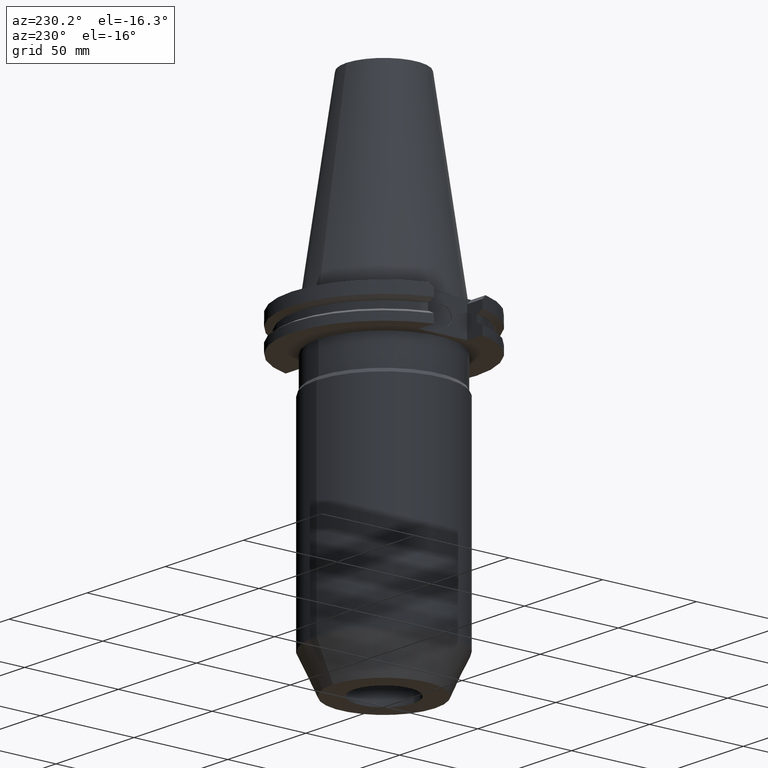
[diagram: clean part render]
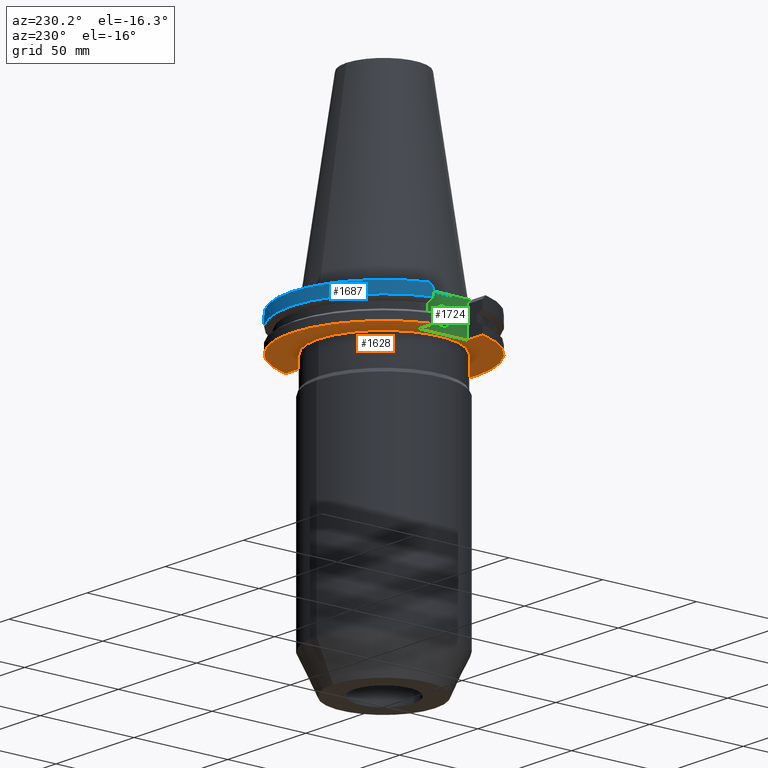
[diagram: same view with three faces highlighted in distinct colors, each labeled with its STEP entity id]
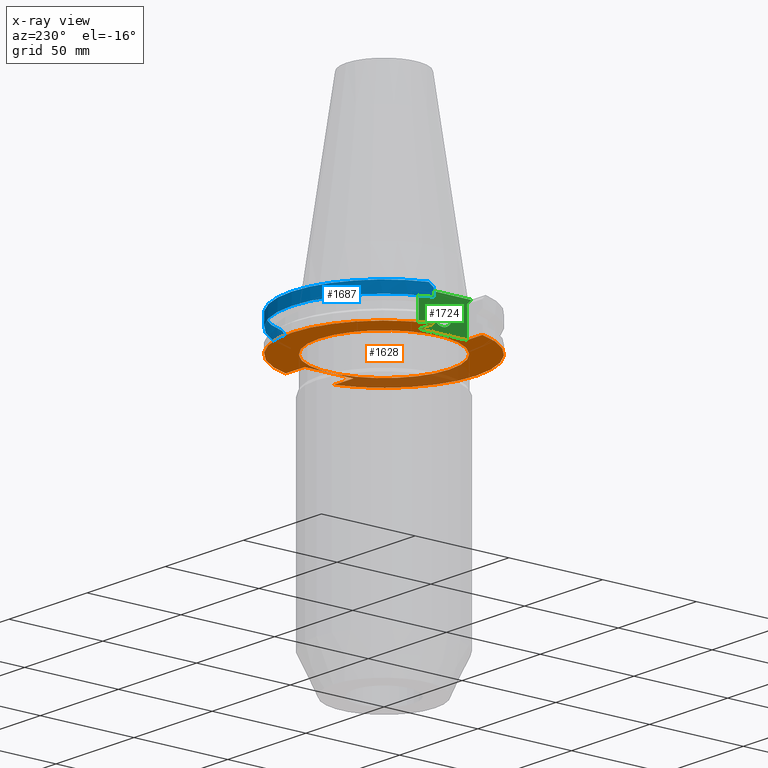
[diagram: x-ray of the same camera — body ghosted, the three highlighted faces saturated]
A machine part, auxiliary view with three faces highlighted in distinct colors.
The next image is the same camera in x-ray (body ghosted, the three faces saturated) — at least one of them is partly hidden behind the body in this view.
Their STEP definitions:

[orange] entity #1628 — the highlighted planar face has unit normal (0, 0, 1).
#170=DIRECTION('',(0.E0,-1.E0,0.E0));
#171=VECTOR('',#170,2.591E1);
#172=CARTESIAN_POINT('',(3.527E1,1.2955E1,-1.905E1));
#173=LINE('',#172,#171);
#205=DIRECTION('',(1.E0,1.469781941986E-14,0.E0));
#206=VECTOR('',#205,1.220671146204E1);
#207=CARTESIAN_POINT('',(3.527E1,1.2955E1,-1.905E1));
#208=LINE('',#207,#206);
#212=CARTESIAN_POINT('',(0.E0,0.E0,-1.905E1));
#213=DIRECTION('',(0.E0,0.E0,1.E0));
#214=DIRECTION('',(9.647287063661E-1,2.632461264923E-1,0.E0));
#215=AXIS2_PLACEMENT_3D('',#212,#213,#214);
#220=CARTESIAN_POINT('',(0.E0,0.E0,-1.905E1));
#221=DIRECTION('',(0.E0,0.E0,1.E0));
#222=DIRECTION('',(0.E0,1.E0,0.E0));
#223=AXIS2_PLACEMENT_3D('',#220,#221,#222);
#228=DIRECTION('',(-1.E0,-1.831349647018E-14,0.E0));
#229=VECTOR('',#228,9.796711462041E0);
#230=CARTESIAN_POINT('',(-3.768E1,-1.2955E1,-1.905E1));
#231=LINE('',#230,#229);
#235=CARTESIAN_POINT('',(0.E0,0.E0,-1.905E1));
#236=DIRECTION('',(0.E0,0.E0,1.E0));
#237=DIRECTION('',(-9.647287063661E-1,-2.632461264923E-1,0.E0));
#238=AXIS2_PLACEMENT_3D('',#235,#236,#237);
#243=CARTESIAN_POINT('',(0.E0,0.E0,-1.905E1));
#244=DIRECTION('',(0.E0,0.E0,1.E0));
#245=DIRECTION('',(0.E0,-1.E0,0.E0));
#246=AXIS2_PLACEMENT_3D('',#243,#244,#245);
#251=CARTESIAN_POINT('',(0.E0,0.E0,-1.905E1));
#252=DIRECTION('',(0.E0,0.E0,-1.E0));
#253=DIRECTION('',(0.E0,-1.E0,0.E0));
#254=AXIS2_PLACEMENT_3D('',#251,#252,#253);
#259=CARTESIAN_POINT('',(0.E0,0.E0,-1.905E1));
#260=DIRECTION('',(0.E0,0.E0,-1.E0));
#261=DIRECTION('',(0.E0,1.E0,0.E0));
#262=AXIS2_PLACEMENT_3D('',#259,#260,#261);
#318=DIRECTION('',(0.E0,1.E0,0.E0));
#319=VECTOR('',#318,2.591E1);
#320=CARTESIAN_POINT('',(-3.768E1,-1.2955E1,-1.905E1));
#321=LINE('',#320,#319);
#355=DIRECTION('',(-1.E0,1.813217472295E-14,0.E0));
#356=VECTOR('',#355,9.796711462041E0);
#357=CARTESIAN_POINT('',(-3.768E1,1.2955E1,-1.905E1));
#358=LINE('',#357,#356);
#605=DIRECTION('',(1.E0,-1.498886534897E-14,0.E0));
#606=VECTOR('',#605,1.220671146204E1);
#607=CARTESIAN_POINT('',(3.527E1,-1.2955E1,-1.905E1));
#608=LINE('',#607,#606);
#1294=CARTESIAN_POINT('',(3.527E1,1.2955E1,-1.905E1));
#1295=CARTESIAN_POINT('',(3.527E1,-1.2955E1,-1.905E1));
#1296=VERTEX_POINT('',#1294);
#1297=VERTEX_POINT('',#1295);
#1302=CARTESIAN_POINT('',(4.747671146204E1,1.2955E1,-1.905E1));
#1303=VERTEX_POINT('',#1302);
#1304=CARTESIAN_POINT('',(0.E0,4.92125E1,-1.905E1));
#1305=CARTESIAN_POINT('',(-4.747671146204E1,1.2955E1,-1.905E1));
#1306=VERTEX_POINT('',#1304);
#1307=VERTEX_POINT('',#1305);
#1308=CARTESIAN_POINT('',(-3.768E1,1.2955E1,-1.905E1));
#1309=VERTEX_POINT('',#1308);
#1310=CARTESIAN_POINT('',(-3.768E1,-1.2955E1,-1.905E1));
#1311=VERTEX_POINT('',#1310);
#1312=CARTESIAN_POINT('',(-4.747671146204E1,-1.2955E1,-1.905E1));
#1313=VERTEX_POINT('',#1312);
#1314=CARTESIAN_POINT('',(0.E0,-4.92125E1,-1.905E1));
#1315=CARTESIAN_POINT('',(4.747671146204E1,-1.2955E1,-1.905E1));
#1316=VERTEX_POINT('',#1314);
#1317=VERTEX_POINT('',#1315);
#1318=CARTESIAN_POINT('',(0.E0,-3.4925E1,-1.905E1));
#1319=CARTESIAN_POINT('',(0.E0,3.4925E1,-1.905E1));
#1320=VERTEX_POINT('',#1318);
#1321=VERTEX_POINT('',#1319);
#1596=CARTESIAN_POINT('',(0.E0,0.E0,-1.905E1));
#1597=DIRECTION('',(0.E0,0.E0,1.E0));
#1598=DIRECTION('',(0.E0,1.E0,0.E0));
#1599=AXIS2_PLACEMENT_3D('',#1596,#1597,#1598);
#1600=PLANE('',#1599);
#1601=ORIENTED_EDGE('',*,*,#1582,.F.);
#1603=ORIENTED_EDGE('',*,*,#1602,.T.);
#1605=ORIENTED_EDGE('',*,*,#1604,.T.);
#1607=ORIENTED_EDGE('',*,*,#1606,.T.);
#1609=ORIENTED_EDGE('',*,*,#1608,.F.);
#1611=ORIENTED_EDGE('',*,*,#1610,.F.);
#1613=ORIENTED_EDGE('',*,*,#1612,.T.);
#1615=ORIENTED_EDGE('',*,*,#1614,.T.);
#1617=ORIENTED_EDGE('',*,*,#1616,.T.);
#1619=ORIENTED_EDGE('',*,*,#1618,.F.);
#1620=EDGE_LOOP('',(#1601,#1603,#1605,#1607,#1609,#1611,#1613,#1615,#1617,
#1619));
#1621=FACE_OUTER_BOUND('',#1620,.F.);
#1623=ORIENTED_EDGE('',*,*,#1622,.T.);
#1625=ORIENTED_EDGE('',*,*,#1624,.T.);
#1626=EDGE_LOOP('',(#1623,#1625));
#1627=FACE_BOUND('',#1626,.F.);
#216=CIRCLE('',#215,4.92125E1);
#224=CIRCLE('',#223,4.92125E1);
#239=CIRCLE('',#238,4.92125E1);
#247=CIRCLE('',#246,4.92125E1);
#255=CIRCLE('',#254,3.4925E1);
#263=CIRCLE('',#262,3.4925E1);
#1582=EDGE_CURVE('',#1296,#1297,#173,.T.);
#1602=EDGE_CURVE('',#1296,#1303,#208,.T.);
#1604=EDGE_CURVE('',#1303,#1306,#216,.T.);
#1606=EDGE_CURVE('',#1306,#1307,#224,.T.);
#1608=EDGE_CURVE('',#1309,#1307,#358,.T.);
#1610=EDGE_CURVE('',#1311,#1309,#321,.T.);
#1612=EDGE_CURVE('',#1311,#1313,#231,.T.);
#1614=EDGE_CURVE('',#1313,#1316,#239,.T.);
#1616=EDGE_CURVE('',#1316,#1317,#247,.T.);
#1618=EDGE_CURVE('',#1297,#1317,#608,.T.);
#1622=EDGE_CURVE('',#1320,#1321,#255,.T.);
#1624=EDGE_CURVE('',#1321,#1320,#263,.T.);
#1628=ADVANCED_FACE('',(#1621,#1627),#1600,.F.);

[blue] entity #1687 — the highlighted cylindrical surface (partial cylindrical patch) has radius 49.2125 mm, axis along (0, 0, 1).
#138=CARTESIAN_POINT('',(0.E0,0.E0,-1.5E0));
#139=DIRECTION('',(0.E0,0.E0,-1.E0));
#140=DIRECTION('',(-9.514024724200E-1,3.079502159004E-1,0.E0));
#141=AXIS2_PLACEMENT_3D('',#138,#139,#140);
#146=CARTESIAN_POINT('',(0.E0,0.E0,-1.5E0));
#147=DIRECTION('',(0.E0,0.E0,-1.E0));
#148=DIRECTION('',(0.E0,1.E0,0.E0));
#149=AXIS2_PLACEMENT_3D('',#146,#147,#148);
#274=CARTESIAN_POINT('',(4.682089417397E1,1.5155E1,-1.5E0));
#275=CARTESIAN_POINT('',(4.705739607797E1,1.442433483212E1,-2.230665167880E0));
#276=CARTESIAN_POINT('',(4.727588310257E1,1.369098379593E1,-2.964016204073E0));
#277=CARTESIAN_POINT('',(4.747671146204E1,1.2955E1,-3.699999999999E0));
#296=DIRECTION('',(-2.622645846769E-13,-3.551499584166E-14,1.E0));
#297=VECTOR('',#296,3.901333230925E0);
#298=CARTESIAN_POINT('',(4.747671146204E1,1.2955E1,-7.601333230925E0));
#299=LINE('',#298,#297);
#303=DIRECTION('',(-2.622645846769E-13,3.460435492264E-14,-1.E0));
#304=VECTOR('',#303,3.901333230925E0);
#305=CARTESIAN_POINT('',(-4.747671146204E1,1.2955E1,-3.7E0));
#306=LINE('',#305,#304);
#310=CARTESIAN_POINT('',(-4.747671146204E1,1.2955E1,-3.699999999999E0));
#311=CARTESIAN_POINT('',(-4.727588310257E1,1.369098379593E1,-2.964016204073E0));
#312=CARTESIAN_POINT('',(-4.705739607797E1,1.442433483212E1,-2.230665167880E0));
#313=CARTESIAN_POINT('',(-4.682089417397E1,1.5155E1,-1.5E0));
#535=CARTESIAN_POINT('',(0.E0,0.E0,-7.601333230926E0));
#536=DIRECTION('',(0.E0,0.E0,1.E0));
#537=DIRECTION('',(9.647287063661E-1,2.632461264923E-1,0.E0));
#538=AXIS2_PLACEMENT_3D('',#535,#536,#537);
#543=CARTESIAN_POINT('',(0.E0,0.E0,-7.601333230926E0));
#544=DIRECTION('',(0.E0,0.E0,1.E0));
#545=DIRECTION('',(0.E0,1.E0,0.E0));
#546=AXIS2_PLACEMENT_3D('',#543,#544,#545);
#1288=CARTESIAN_POINT('',(-4.682089417397E1,1.5155E1,-1.5E0));
#1289=VERTEX_POINT('',#1288);
#1290=CARTESIAN_POINT('',(6.280856145559E-14,4.92125E1,-1.5E0));
#1291=CARTESIAN_POINT('',(4.682089417397E1,1.5155E1,-1.5E0));
#1292=VERTEX_POINT('',#1290);
#1293=VERTEX_POINT('',#1291);
#1386=CARTESIAN_POINT('',(4.747671146204E1,1.2955E1,-3.7E0));
#1387=VERTEX_POINT('',#1386);
#1388=CARTESIAN_POINT('',(4.747671146204E1,1.2955E1,-7.601333230925E0));
#1389=VERTEX_POINT('',#1388);
#1407=VERTEX_POINT('',#310);
#1408=CARTESIAN_POINT('',(-4.747671146204E1,1.2955E1,-7.601333230925E0));
#1409=VERTEX_POINT('',#1408);
#1410=CARTESIAN_POINT('',(0.E0,4.92125E1,-7.601333230926E0));
#1411=VERTEX_POINT('',#1410);
#1668=CARTESIAN_POINT('',(0.E0,0.E0,-1.78435E2));
#1669=DIRECTION('',(0.E0,0.E0,1.E0));
#1670=DIRECTION('',(0.E0,1.E0,0.E0));
#1671=AXIS2_PLACEMENT_3D('',#1668,#1669,#1670);
#1672=CYLINDRICAL_SURFACE('',#1671,4.92125E1);
#1673=ORIENTED_EDGE('',*,*,#1638,.T.);
#1674=ORIENTED_EDGE('',*,*,#1660,.F.);
#1675=ORIENTED_EDGE('',*,*,#1566,.F.);
#1676=ORIENTED_EDGE('',*,*,#1564,.F.);
#1678=ORIENTED_EDGE('',*,*,#1677,.F.);
#1680=ORIENTED_EDGE('',*,*,#1679,.T.);
#1682=ORIENTED_EDGE('',*,*,#1681,.F.);
#1684=ORIENTED_EDGE('',*,*,#1683,.F.);
#1685=EDGE_LOOP('',(#1673,#1674,#1675,#1676,#1678,#1680,#1682,#1684));
#1686=FACE_OUTER_BOUND('',#1685,.F.);
#142=CIRCLE('',#141,4.92125E1);
#150=CIRCLE('',#149,4.92125E1);
#278=B_SPLINE_CURVE_WITH_KNOTS('',3,(#274,#275,#276,#277),.UNSPECIFIED.,.F.,.F.,
(4,4),(0.E0,1.E0),.UNSPECIFIED.);
#314=B_SPLINE_CURVE_WITH_KNOTS('',3,(#310,#311,#312,#313),.UNSPECIFIED.,.F.,.F.,
(4,4),(0.E0,1.E0),.UNSPECIFIED.);
#539=CIRCLE('',#538,4.92125E1);
#547=CIRCLE('',#546,4.92125E1);
#1564=EDGE_CURVE('',#1289,#1292,#142,.T.);
#1566=EDGE_CURVE('',#1292,#1293,#150,.T.);
#1638=EDGE_CURVE('',#1389,#1387,#299,.T.);
#1660=EDGE_CURVE('',#1293,#1387,#278,.T.);
#1677=EDGE_CURVE('',#1407,#1289,#314,.T.);
#1679=EDGE_CURVE('',#1407,#1409,#306,.T.);
#1681=EDGE_CURVE('',#1411,#1409,#547,.T.);
#1683=EDGE_CURVE('',#1389,#1411,#539,.T.);
#1687=ADVANCED_FACE('',(#1686),#1672,.T.);

[green] entity #1724 — the highlighted planar face has unit normal (1, 0, 0).
#124=DIRECTION('',(0.E0,1.E0,0.E0));
#125=VECTOR('',#124,3.031E1);
#126=CARTESIAN_POINT('',(-3.768E1,-1.5155E1,-1.5E0));
#127=LINE('',#126,#125);
#318=DIRECTION('',(0.E0,1.E0,0.E0));
#319=VECTOR('',#318,2.591E1);
#320=CARTESIAN_POINT('',(-3.768E1,-1.2955E1,-1.905E1));
#321=LINE('',#320,#319);
#325=DIRECTION('',(0.E0,7.071067811865E-1,7.071067811865E-1));
#326=VECTOR('',#325,3.111269837221E0);
#327=CARTESIAN_POINT('',(-3.768E1,1.2955E1,-3.7E0));
#328=LINE('',#327,#326);
#332=DIRECTION('',(0.E0,7.071067811865E-1,-7.071067811865E-1));
#333=VECTOR('',#332,3.111269837221E0);
#334=CARTESIAN_POINT('',(-3.768E1,-1.5155E1,-1.5E0));
#335=LINE('',#334,#333);
#339=CARTESIAN_POINT('',(-3.768E1,0.E0,-1.118E1));
#340=DIRECTION('',(-1.E0,0.E0,0.E0));
#341=DIRECTION('',(0.E0,0.E0,1.E0));
#342=AXIS2_PLACEMENT_3D('',#339,#340,#341);
#347=CARTESIAN_POINT('',(-3.768E1,0.E0,-1.118E1));
#348=DIRECTION('',(-1.E0,0.E0,0.E0));
#349=DIRECTION('',(0.E0,0.E0,-1.E0));
#350=AXIS2_PLACEMENT_3D('',#347,#348,#349);
#376=DIRECTION('',(0.E0,0.E0,-1.E0));
#377=VECTOR('',#376,1.535E1);
#378=CARTESIAN_POINT('',(-3.768E1,1.2955E1,-3.7E0));
#379=LINE('',#378,#377);
#640=DIRECTION('',(0.E0,0.E0,1.E0));
#641=VECTOR('',#640,1.535E1);
#642=CARTESIAN_POINT('',(-3.768E1,-1.2955E1,-1.905E1));
#643=LINE('',#642,#641);
#1284=CARTESIAN_POINT('',(-3.768E1,-1.5155E1,-1.5E0));
#1285=VERTEX_POINT('',#1284);
#1286=CARTESIAN_POINT('',(-3.768E1,1.5155E1,-1.5E0));
#1287=VERTEX_POINT('',#1286);
#1308=CARTESIAN_POINT('',(-3.768E1,1.2955E1,-1.905E1));
#1309=VERTEX_POINT('',#1308);
#1310=CARTESIAN_POINT('',(-3.768E1,-1.2955E1,-1.905E1));
#1311=VERTEX_POINT('',#1310);
#1429=CARTESIAN_POINT('',(-3.768E1,-1.2955E1,-3.7E0));
#1430=VERTEX_POINT('',#1429);
#1438=CARTESIAN_POINT('',(-3.768E1,1.2955E1,-3.7E0));
#1439=VERTEX_POINT('',#1438);
#1440=CARTESIAN_POINT('',(-3.768E1,0.E0,-6.4175E0));
#1441=CARTESIAN_POINT('',(-3.768E1,0.E0,-1.59425E1));
#1442=VERTEX_POINT('',#1440);
#1443=VERTEX_POINT('',#1441);
#1702=CARTESIAN_POINT('',(-3.768E1,0.E0,0.E0));
#1703=DIRECTION('',(1.E0,0.E0,0.E0));
#1704=DIRECTION('',(0.E0,-1.E0,0.E0));
#1705=AXIS2_PLACEMENT_3D('',#1702,#1703,#1704);
#1706=PLANE('',#1705);
#1707=ORIENTED_EDGE('',*,*,#1610,.T.);
#1709=ORIENTED_EDGE('',*,*,#1708,.F.);
#1710=ORIENTED_EDGE('',*,*,#1695,.T.);
#1711=ORIENTED_EDGE('',*,*,#1560,.F.);
#1713=ORIENTED_EDGE('',*,*,#1712,.T.);
#1715=ORIENTED_EDGE('',*,*,#1714,.F.);
#1716=EDGE_LOOP('',(#1707,#1709,#1710,#1711,#1713,#1715));
#1717=FACE_OUTER_BOUND('',#1716,.F.);
#1719=ORIENTED_EDGE('',*,*,#1718,.T.);
#1721=ORIENTED_EDGE('',*,*,#1720,.T.);
#1722=EDGE_LOOP('',(#1719,#1721));
#1723=FACE_BOUND('',#1722,.F.);
#343=CIRCLE('',#342,4.7625E0);
#351=CIRCLE('',#350,4.7625E0);
#1560=EDGE_CURVE('',#1285,#1287,#127,.T.);
#1610=EDGE_CURVE('',#1311,#1309,#321,.T.);
#1695=EDGE_CURVE('',#1439,#1287,#328,.T.);
#1708=EDGE_CURVE('',#1439,#1309,#379,.T.);
#1712=EDGE_CURVE('',#1285,#1430,#335,.T.);
#1714=EDGE_CURVE('',#1311,#1430,#643,.T.);
#1718=EDGE_CURVE('',#1442,#1443,#343,.T.);
#1720=EDGE_CURVE('',#1443,#1442,#351,.T.);
#1724=ADVANCED_FACE('',(#1717,#1723),#1706,.F.);